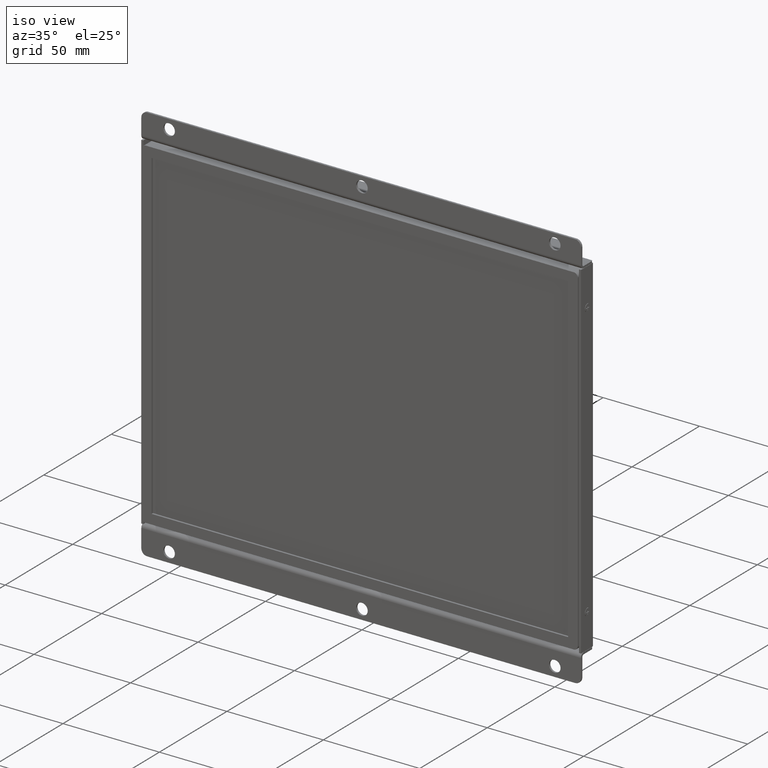
[diagram: clean part render]
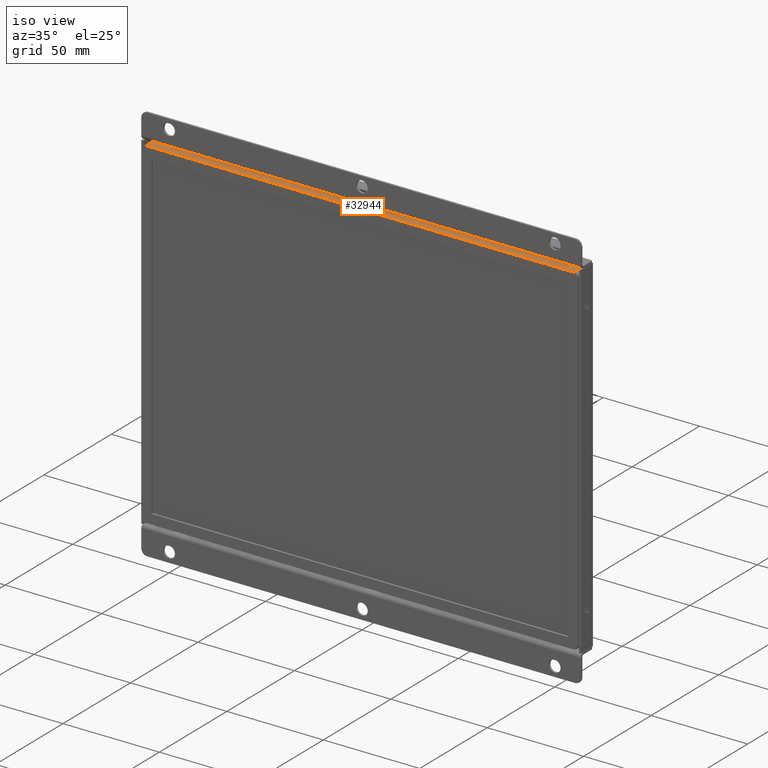
[diagram: same view with one face highlighted and labeled with its STEP entity id]
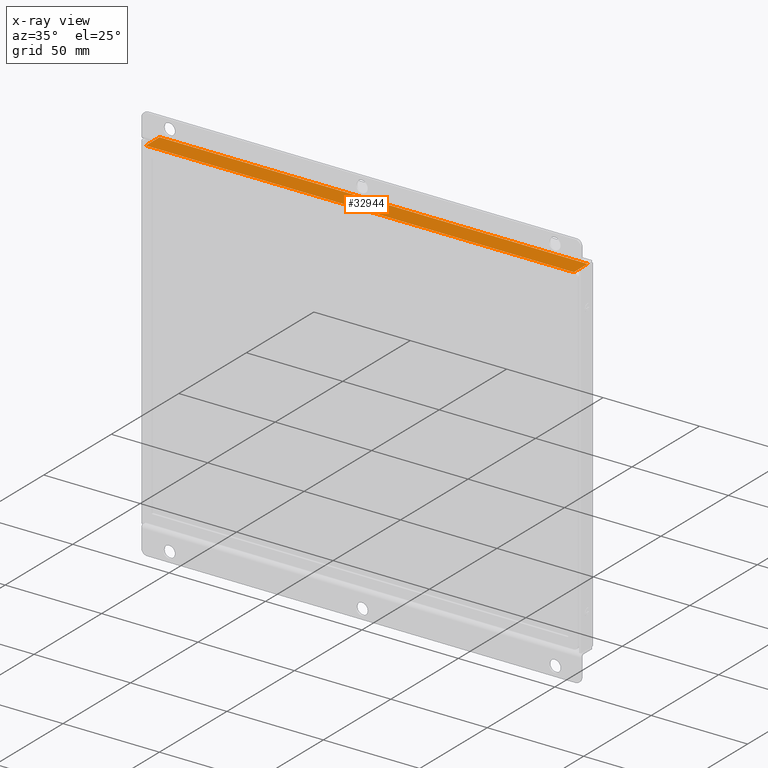
[diagram: x-ray of the same camera — body ghosted, the highlighted face saturated]
A machine part, iso view. The second image highlights one B-rep face of the part: STEP entity #32944.
The next image is the same camera in x-ray: the body ghosted, the highlighted face saturated — about 0% of this face is hidden behind the body in this view.
In plain terms, the highlighted planar face has unit normal (-0, -0, 1).
Its self-contained STEP definition (entity closure, byte-faithful):
#2790=FACE_OUTER_BOUND('',#4661,.T.);
#4661=EDGE_LOOP('',(#22570,#22571,#22572,#22573));
#6759=LINE('',#47406,#9980);
#6858=LINE('',#47660,#10079);
#6863=LINE('',#47675,#10084);
#6873=LINE('',#47694,#10094);
#9980=VECTOR('',#38208,10.);
#10079=VECTOR('',#38429,10.);
#10084=VECTOR('',#38442,10.);
#10094=VECTOR('',#38462,10.);
#14425=VERTEX_POINT('',#47402);
#14427=VERTEX_POINT('',#47405);
#14521=VERTEX_POINT('',#47658);
#14527=VERTEX_POINT('',#47673);
#17581=EDGE_CURVE('',#14425,#14427,#6759,.T.);
#17704=EDGE_CURVE('',#14521,#14425,#6858,.T.);
#17712=EDGE_CURVE('',#14527,#14521,#6863,.T.);
#17722=EDGE_CURVE('',#14427,#14527,#6873,.T.);
#22570=ORIENTED_EDGE('',*,*,#17704,.F.);
#22571=ORIENTED_EDGE('',*,*,#17712,.F.);
#22572=ORIENTED_EDGE('',*,*,#17722,.F.);
#22573=ORIENTED_EDGE('',*,*,#17581,.F.);
#31773=PLANE('',#35289);
#32944=ADVANCED_FACE('',(#2790),#31773,.T.);
#35289=AXIS2_PLACEMENT_3D('',#47703,#38475,#38476);
#38208=DIRECTION('',(1.,3.14399440601814E-16,0.));
#38429=DIRECTION('',(0.,0.,-1.));
#38442=DIRECTION('',(-1.,0.,0.));
#38462=DIRECTION('',(0.,0.,1.));
#38475=DIRECTION('center_axis',(-3.14399440601814E-16,1.,0.));
#38476=DIRECTION('ref_axis',(-1.,-3.14399440601814E-16,0.));
#47402=CARTESIAN_POINT('',(-111.,88.4,0.));
#47405=CARTESIAN_POINT('',(111.,88.4,0.));
#47406=CARTESIAN_POINT('',(-113.,88.4,0.));
#47658=CARTESIAN_POINT('',(-111.,88.4,10.2));
#47660=CARTESIAN_POINT('',(-111.,88.4,0.));
#47673=CARTESIAN_POINT('',(111.,88.4,10.2));
#47675=CARTESIAN_POINT('',(113.,88.4,10.2));
#47694=CARTESIAN_POINT('',(111.,88.4,0.));
#47703=CARTESIAN_POINT('Origin',(113.,88.4,0.));